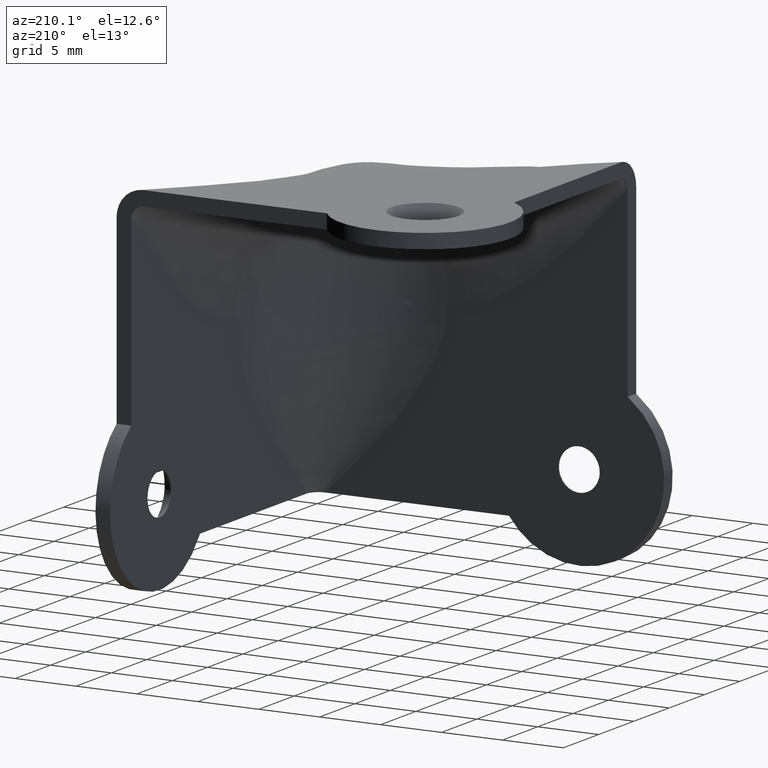
[diagram: clean part render]
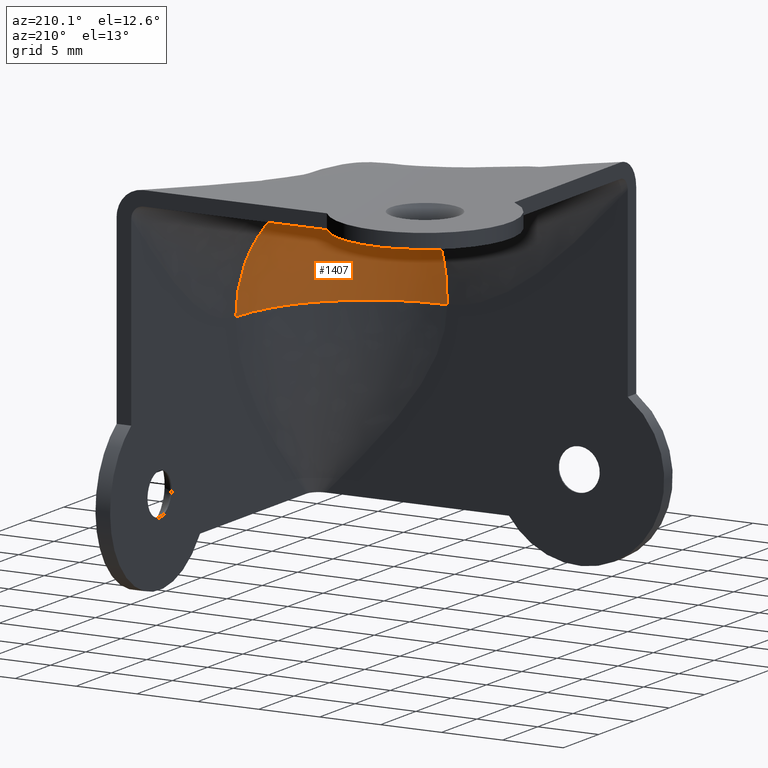
[diagram: same view with one face highlighted and labeled with its STEP entity id]
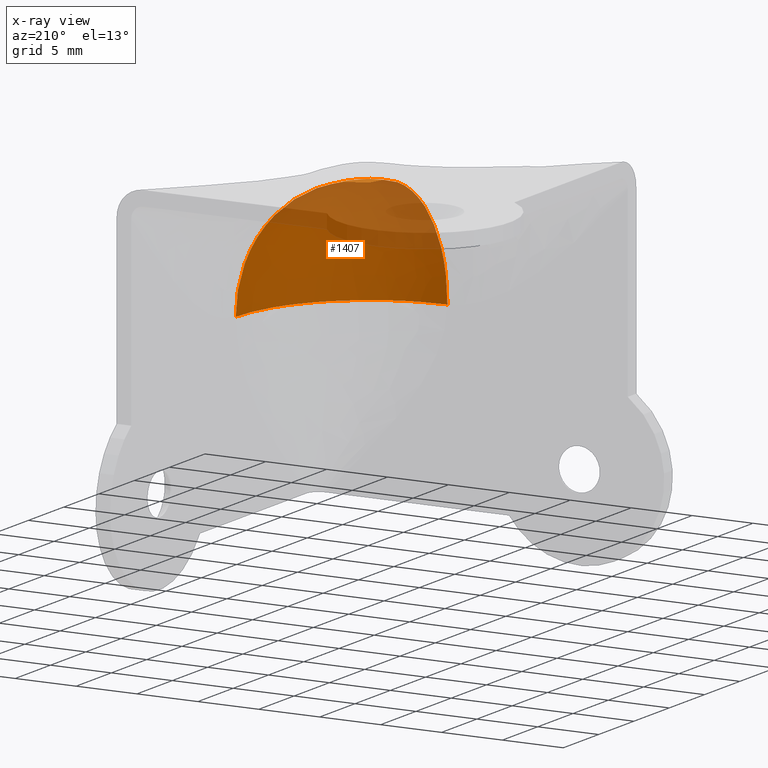
[diagram: x-ray of the same camera — body ghosted, the highlighted face saturated]
A machine part, auxiliary view. The second image highlights one B-rep face of the part: STEP entity #1407.
The next image is the same camera in x-ray: the body ghosted, the highlighted face saturated — about 38% of this face is hidden behind the body in this view.
In plain terms, the highlighted face is a freeform B-spline surface patch.
Its self-contained STEP definition (entity closure, byte-faithful):
#1318=CARTESIAN_POINT('',(-12.199999999999999,1.200000000000000,17.800000000000001));
#1319=VERTEX_POINT('',#1318);
#1327=CARTESIAN_POINT('',(-1.200000000000000,12.199999999999999,17.800000000000001));
#1328=VERTEX_POINT('',#1327);
#1329=CARTESIAN_POINT('',(-12.199999999999999,1.200000000000000,17.800000000000001));
#1330=CARTESIAN_POINT('',(-1.200000000000002,1.200000000000002,17.799999999999979));
#1331=CARTESIAN_POINT('',(-1.200000000000000,12.199999999999999,17.800000000000001));
#1339=(BOUNDED_CURVE()B_SPLINE_CURVE(2,(#1329,#1330,#1331),.UNSPECIFIED.,.F.,.U.)CURVE()GEOMETRIC_REPRESENTATION_ITEM()QUASI_UNIFORM_CURVE()RATIONAL_B_SPLINE_CURVE((1.0,0.707106781186548,1.0))REPRESENTATION_ITEM(''));
#1340=EDGE_CURVE('',#1319,#1328,#1339,.T.);
#1352=CARTESIAN_POINT('',(-10.274090204516524,2.795264392867729,12.429541954395418));
#1353=CARTESIAN_POINT('',(-4.596404812656200,2.952958144085073,14.189474123029880));
#1354=CARTESIAN_POINT('',(-0.953599980943284,10.680515040037253,16.765326301837622));
#1355=CARTESIAN_POINT('',(-1.305596638888809,13.602361264546344,17.212328076977450));
#1356=CARTESIAN_POINT('',(-11.003683029799110,1.221255384828113,14.924302826030269));
#1357=CARTESIAN_POINT('',(-4.776312029813173,0.797780156701221,17.899100735262909));
#1358=CARTESIAN_POINT('',(-0.601136498491969,9.654665979404186,20.851395872140021));
#1359=CARTESIAN_POINT('',(-1.030991716436661,13.056072192702201,20.999410749048195));
#1360=CARTESIAN_POINT('',(-15.458418547571140,1.221255384828113,21.224249772385811));
#1361=CARTESIAN_POINT('',(-10.941086845699729,0.797780156701221,26.617408280429618));
#1362=CARTESIAN_POINT('',(-6.765911314378526,9.654665979404186,29.569703417306730));
#1363=CARTESIAN_POINT('',(-6.654765766386622,13.056072192702201,28.952627727167524));
#1364=CARTESIAN_POINT('',(-18.522868260987789,4.519008790181214,22.492942679053268));
#1365=CARTESIAN_POINT('',(-16.041137806787301,5.144780757369381,26.860821236787906));
#1366=CARTESIAN_POINT('',(-12.939755606932220,11.723806676307815,29.053829774403081));
#1367=CARTESIAN_POINT('',(-12.443541021386526,14.170767711387034,28.619277351036729));
#1375=(BOUNDED_SURFACE()B_SPLINE_SURFACE(2,2,((#1352,#1356,#1360,#1364),(#1353,#1357,#1361,#1365),(#1354,#1358,#1362,#1366),(#1355,#1359,#1363,#1367)),.UNSPECIFIED.,.F.,.F.,.U.)B_SPLINE_SURFACE_WITH_KNOTS((3,1,3),(3,1,3),(0.0,12.851951657712259,19.285669468574842),(0.0,7.929870966973765,20.135487076654911),.UNSPECIFIED.)GEOMETRIC_REPRESENTATION_ITEM()RATIONAL_B_SPLINE_SURFACE(((1.530013069333412,1.383869994367203,1.383869994367203,1.730100565857651),(1.146143074966209,1.0,1.0,1.346230571490448),(1.146143074966209,1.0,1.0,1.346230571490448),(1.242341955136620,1.096198880170410,1.096198880170410,1.442429451660858)))REPRESENTATION_ITEM('')SURFACE());
#1376=CARTESIAN_POINT('',(-12.199999999999999,12.199999999999999,28.800000000000001));
#1377=VERTEX_POINT('',#1376);
#1378=CARTESIAN_POINT('',(-12.199999999999999,1.200000000000000,17.800000000000001));
#1379=CARTESIAN_POINT('',(-12.199999999999990,1.200000000000002,28.799999999999955));
#1380=CARTESIAN_POINT('',(-12.199999999999999,12.199999999999999,28.800000000000001));
#1388=(BOUNDED_CURVE()B_SPLINE_CURVE(2,(#1378,#1379,#1380),.UNSPECIFIED.,.F.,.U.)CURVE()GEOMETRIC_REPRESENTATION_ITEM()QUASI_UNIFORM_CURVE()RATIONAL_B_SPLINE_CURVE((1.0,0.707106781186548,1.0))REPRESENTATION_ITEM(''));
#1389=EDGE_CURVE('',#1319,#1377,#1388,.T.);
#1390=ORIENTED_EDGE('',*,*,#1389,.T.);
#1391=CARTESIAN_POINT('',(-12.199999999999999,12.199999999999999,28.800000000000001));
#1392=CARTESIAN_POINT('',(-1.200000000000002,12.199999999999990,28.799999999999955));
#1393=CARTESIAN_POINT('',(-1.200000000000000,12.199999999999999,17.800000000000001));
#1401=(BOUNDED_CURVE()B_SPLINE_CURVE(2,(#1391,#1392,#1393),.UNSPECIFIED.,.F.,.U.)CURVE()GEOMETRIC_REPRESENTATION_ITEM()QUASI_UNIFORM_CURVE()RATIONAL_B_SPLINE_CURVE((1.0,0.707106781186548,1.0))REPRESENTATION_ITEM(''));
#1402=EDGE_CURVE('',#1377,#1328,#1401,.T.);
#1403=ORIENTED_EDGE('',*,*,#1402,.T.);
#1404=ORIENTED_EDGE('',*,*,#1340,.F.);
#1405=EDGE_LOOP('',(#1390,#1403,#1404));
#1406=FACE_OUTER_BOUND('',#1405,.T.);
#1407=ADVANCED_FACE('',(#1406),#1375,.F.);